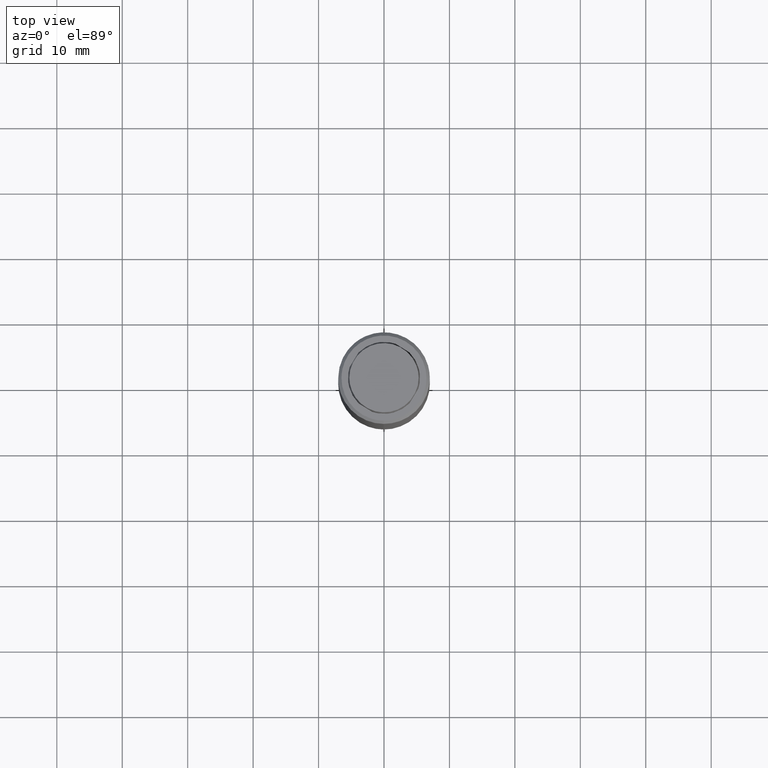
[diagram: clean part render]
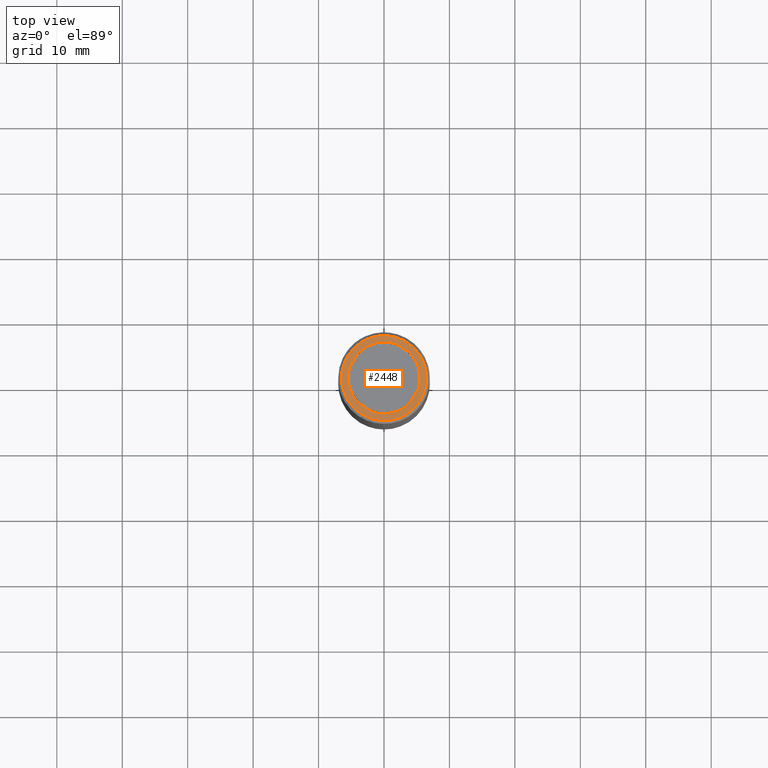
[diagram: same view with one face highlighted and labeled with its STEP entity id]
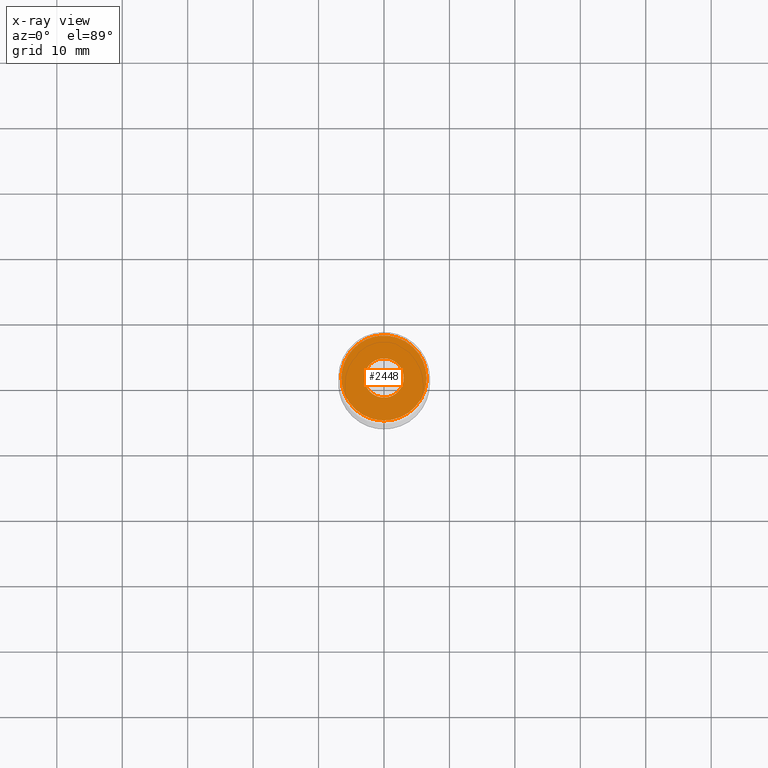
[diagram: x-ray of the same camera — body ghosted, the highlighted face saturated]
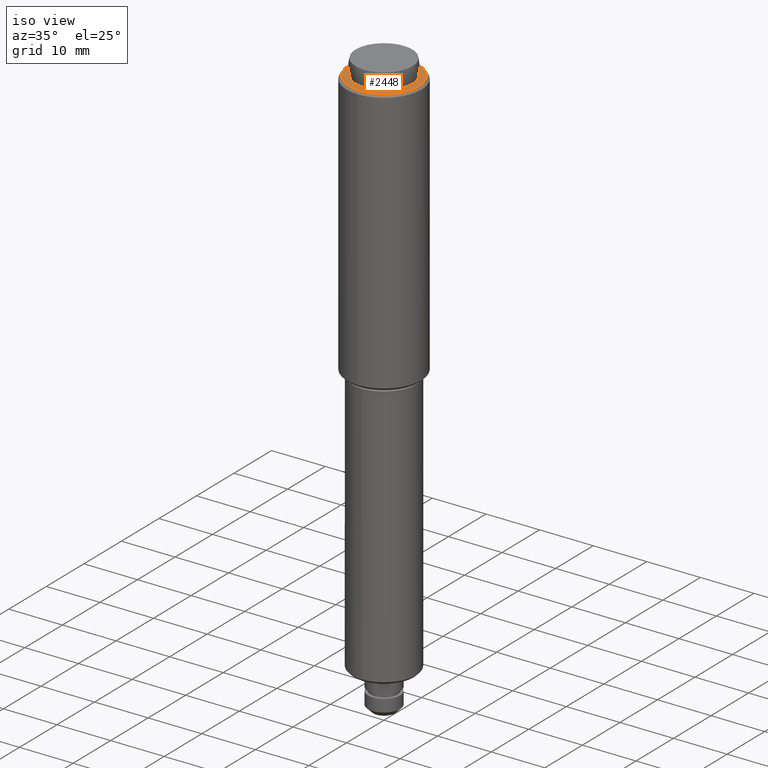
[diagram: same view with one face highlighted and labeled with its STEP entity id]
A machine part, top view. The second image highlights one B-rep face of the part: STEP entity #2448.
The next image is the same camera in x-ray: the body ghosted, the highlighted face saturated — about 0% of this face is hidden behind the body in this view.
A second angle (iso view) of the same face is appended — the face is thin or edge-on in the first view.
In plain terms, the highlighted face is a freeform B-spline surface patch.
Its self-contained STEP definition (entity closure, byte-faithful):
#1782=CARTESIAN_POINT('',(-2.627400308243244,5.945314762114272,106.999999999971490));
#1783=VERTEX_POINT('',#1782);
#1789=CARTESIAN_POINT('',(6.500000000000000,0.0,107.0));
#1790=VERTEX_POINT('',#1789);
#1791=CARTESIAN_POINT('',(6.500000000000000,0.0,107.0));
#1792=CARTESIAN_POINT('',(6.500000000000000,6.500000000000000,107.000000000000010));
#1793=CARTESIAN_POINT('',(0.0,6.500000000000000,107.0));
#1794=CARTESIAN_POINT('',(-1.372251512491877,6.500000000000000,107.0));
#1795=CARTESIAN_POINT('',(-2.627400308243244,5.945314762114272,106.999999999971460));
#1803=(BOUNDED_CURVE()B_SPLINE_CURVE(2,(#1791,#1792,#1793,#1794,#1795),.UNSPECIFIED.,.F.,.U.)B_SPLINE_CURVE_WITH_KNOTS((3,2,3),(0.0,0.250000000000000,0.318638421556379),.UNSPECIFIED.)CURVE()GEOMETRIC_REPRESENTATION_ITEM()RATIONAL_B_SPLINE_CURVE((1.0,0.707106781186547,1.0,0.919585087104310,0.883326595734651))REPRESENTATION_ITEM(''));
#1804=EDGE_CURVE('',#1790,#1783,#1803,.T.);
#1806=CARTESIAN_POINT('',(-0.056722481375823,-6.499752499998256,106.999999999913300));
#1807=VERTEX_POINT('',#1806);
#1808=CARTESIAN_POINT('',(-0.056722481375823,-6.499752499998256,106.999999999913290));
#1809=CARTESIAN_POINT('',(-0.028361780970232,-6.500000000000001,107.000000000000060));
#1810=CARTESIAN_POINT('',(0.0,-6.500000000000000,107.0));
#1811=CARTESIAN_POINT('',(6.500000000000000,-6.500000000000000,107.000000000000010));
#1812=CARTESIAN_POINT('',(6.500000000000000,0.0,107.0));
#1820=(BOUNDED_CURVE()B_SPLINE_CURVE(2,(#1808,#1809,#1810,#1811,#1812),.UNSPECIFIED.,.F.,.U.)B_SPLINE_CURVE_WITH_KNOTS((3,2,3),(0.748460105630562,0.750000000000000,1.0),.UNSPECIFIED.)CURVE()GEOMETRIC_REPRESENTATION_ITEM()RATIONAL_B_SPLINE_CURVE((0.996414028020676,0.998195901526010,1.0,0.707106781186547,1.0))REPRESENTATION_ITEM(''));
#1821=EDGE_CURVE('',#1807,#1790,#1820,.T.);
#1910=CARTESIAN_POINT('',(-6.500000000000000,0.0,107.0));
#1911=VERTEX_POINT('',#1910);
#1912=CARTESIAN_POINT('',(-6.500000000000000,0.0,107.0));
#1913=CARTESIAN_POINT('',(-6.500000000000001,-6.443522867607030,107.000000000000010));
#1914=CARTESIAN_POINT('',(-0.056722481375823,-6.499752499998256,106.999999999913330));
#1922=(BOUNDED_CURVE()B_SPLINE_CURVE(2,(#1912,#1913,#1914),.UNSPECIFIED.,.F.,.U.)B_SPLINE_CURVE_WITH_KNOTS((3,3),(0.500000000000000,0.748460105630561),.UNSPECIFIED.)CURVE()GEOMETRIC_REPRESENTATION_ITEM()RATIONAL_B_SPLINE_CURVE((1.0,0.708910879660538,0.996414028020675))REPRESENTATION_ITEM(''));
#1923=EDGE_CURVE('',#1911,#1807,#1922,.T.);
#1925=CARTESIAN_POINT('',(-2.627400308243244,5.945314762114272,106.999999999971460));
#1926=CARTESIAN_POINT('',(-6.500000000000000,4.233905016362014,107.000000000000010));
#1927=CARTESIAN_POINT('',(-6.500000000000000,0.0,107.0));
#1935=(BOUNDED_CURVE()B_SPLINE_CURVE(2,(#1925,#1926,#1927),.UNSPECIFIED.,.F.,.U.)B_SPLINE_CURVE_WITH_KNOTS((3,3),(0.318638421556379,0.500000000000000),.UNSPECIFIED.)CURVE()GEOMETRIC_REPRESENTATION_ITEM()RATIONAL_B_SPLINE_CURVE((0.883326595734651,0.787521694082237,1.0))REPRESENTATION_ITEM(''));
#1936=EDGE_CURVE('',#1783,#1911,#1935,.T.);
#2283=CARTESIAN_POINT('',(-0.183145618662357,2.994404395262066,107.0));
#2284=VERTEX_POINT('',#2283);
#2290=CARTESIAN_POINT('',(-3.0,0.0,107.0));
#2291=VERTEX_POINT('',#2290);
#2292=CARTESIAN_POINT('',(-3.0,0.0,107.0));
#2293=CARTESIAN_POINT('',(-3.000000000000000,2.822118200607947,107.0));
#2294=CARTESIAN_POINT('',(-0.183145618662357,2.994404395262066,106.999999999999970));
#2302=(BOUNDED_CURVE()B_SPLINE_CURVE(2,(#2292,#2293,#2294),.UNSPECIFIED.,.F.,.U.)B_SPLINE_CURVE_WITH_KNOTS((3,3),(0.500000000000000,0.739332962235308),.UNSPECIFIED.)CURVE()GEOMETRIC_REPRESENTATION_ITEM()RATIONAL_B_SPLINE_CURVE((1.0,0.719603993290969,0.976072041658927))REPRESENTATION_ITEM(''));
#2303=EDGE_CURVE('',#2291,#2284,#2302,.T.);
#2305=CARTESIAN_POINT('',(0.354102704294207,-2.979028579052494,107.0));
#2306=VERTEX_POINT('',#2305);
#2307=CARTESIAN_POINT('',(0.354102704294208,-2.979028579052494,107.000000000000040));
#2308=CARTESIAN_POINT('',(0.177672359283087,-3.0,107.000000000000040));
#2309=CARTESIAN_POINT('',(0.0,-3.0,107.0));
#2310=CARTESIAN_POINT('',(-3.0,-3.0,107.000000000000010));
#2311=CARTESIAN_POINT('',(-3.0,0.0,107.0));
#2319=(BOUNDED_CURVE()B_SPLINE_CURVE(2,(#2307,#2308,#2309,#2310,#2311),.UNSPECIFIED.,.F.,.U.)B_SPLINE_CURVE_WITH_KNOTS((3,2,3),(0.229562473478890,0.250000000000000,0.500000000000000),.UNSPECIFIED.)CURVE()GEOMETRIC_REPRESENTATION_ITEM()RATIONAL_B_SPLINE_CURVE((0.956026754115846,0.976055948290587,1.0,0.707106781186548,1.0))REPRESENTATION_ITEM(''));
#2320=EDGE_CURVE('',#2306,#2291,#2319,.T.);
#2364=CARTESIAN_POINT('',(3.0,0.0,107.0));
#2365=VERTEX_POINT('',#2364);
#2366=CARTESIAN_POINT('',(3.0,0.0,107.0));
#2367=CARTESIAN_POINT('',(3.000000000000000,-2.664523577270558,107.0));
#2368=CARTESIAN_POINT('',(0.354102704294208,-2.979028579052495,107.000000000000030));
#2376=(BOUNDED_CURVE()B_SPLINE_CURVE(2,(#2366,#2367,#2368),.UNSPECIFIED.,.F.,.U.)B_SPLINE_CURVE_WITH_KNOTS((3,3),(0.0,0.229562473478890),.UNSPECIFIED.)CURVE()GEOMETRIC_REPRESENTATION_ITEM()RATIONAL_B_SPLINE_CURVE((1.0,0.731050832895960,0.956026754115846))REPRESENTATION_ITEM(''));
#2377=EDGE_CURVE('',#2365,#2306,#2376,.T.);
#2379=CARTESIAN_POINT('',(-0.183145618662357,2.994404395262066,107.000000000000030));
#2380=CARTESIAN_POINT('',(-0.091658289953715,3.000000000000000,107.0));
#2381=CARTESIAN_POINT('',(0.0,3.0,107.0));
#2382=CARTESIAN_POINT('',(3.0,3.0,107.000000000000010));
#2383=CARTESIAN_POINT('',(3.0,0.0,107.0));
#2391=(BOUNDED_CURVE()B_SPLINE_CURVE(2,(#2379,#2380,#2381,#2382,#2383),.UNSPECIFIED.,.F.,.U.)B_SPLINE_CURVE_WITH_KNOTS((3,2,3),(0.739332962235309,0.750000000000000,1.0),.UNSPECIFIED.)CURVE()GEOMETRIC_REPRESENTATION_ITEM()RATIONAL_B_SPLINE_CURVE((0.976072041658929,0.987502787895580,1.0,0.707106781186548,1.0))REPRESENTATION_ITEM(''));
#2392=EDGE_CURVE('',#2284,#2365,#2391,.T.);
#2431=CARTESIAN_POINT('',(-7.149349974803477,-7.149033128308557,107.0));
#2432=CARTESIAN_POINT('',(7.149350323490650,-7.149033128308557,107.0));
#2433=CARTESIAN_POINT('',(-7.149349974803477,7.148139094399713,107.0));
#2434=CARTESIAN_POINT('',(7.149350323490650,7.148139094399713,107.0));
#2435=B_SPLINE_SURFACE_WITH_KNOTS('',1,1,((#2431,#2433),(#2432,#2434)),.UNSPECIFIED.,.F.,.F.,.U.,(2,2),(2,2),(0.0,14.298700298294129),(0.0,14.297172222708269),.UNSPECIFIED.);
#2436=ORIENTED_EDGE('',*,*,#1804,.T.);
#2437=ORIENTED_EDGE('',*,*,#1936,.T.);
#2438=ORIENTED_EDGE('',*,*,#1923,.T.);
#2439=ORIENTED_EDGE('',*,*,#1821,.T.);
#2440=EDGE_LOOP('',(#2436,#2437,#2438,#2439));
#2441=FACE_OUTER_BOUND('',#2440,.T.);
#2442=ORIENTED_EDGE('',*,*,#2303,.T.);
#2443=ORIENTED_EDGE('',*,*,#2392,.T.);
#2444=ORIENTED_EDGE('',*,*,#2377,.T.);
#2445=ORIENTED_EDGE('',*,*,#2320,.T.);
#2446=EDGE_LOOP('',(#2442,#2443,#2444,#2445));
#2447=FACE_BOUND('',#2446,.T.);
#2448=ADVANCED_FACE('',(#2441,#2447),#2435,.T.);